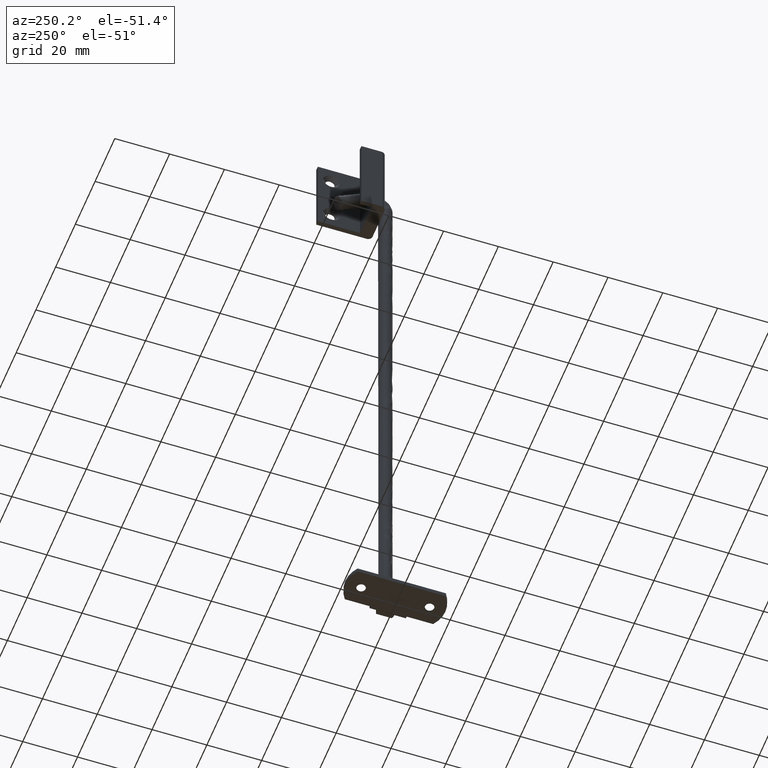
[diagram: clean part render]
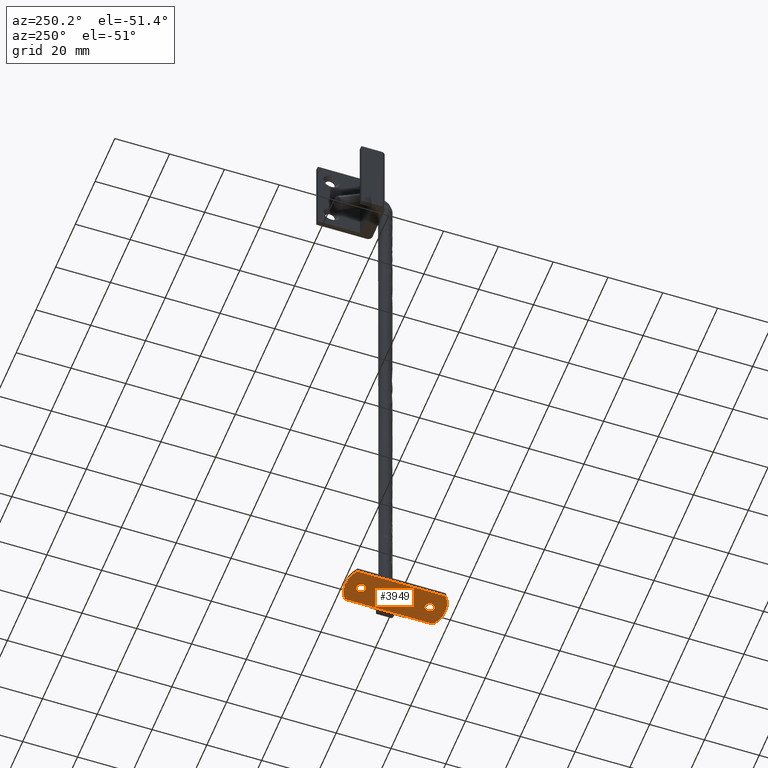
[diagram: same view with one face highlighted and labeled with its STEP entity id]
A machine part, auxiliary view. The second image highlights one B-rep face of the part: STEP entity #3949.
In plain terms, the highlighted face is a freeform B-spline surface patch.
Its self-contained STEP definition (entity closure, byte-faithful):
#2896=CARTESIAN_POINT('',(0.129457508885392,14.144913600586120,-2.602085E-018));
#2897=VERTEX_POINT('',#2896);
#2903=CARTESIAN_POINT('',(1.650000000000000,12.500000000000000,0.0));
#2904=VERTEX_POINT('',#2903);
#2905=CARTESIAN_POINT('',(1.650000000000000,12.500000000000000,0.0));
#2906=CARTESIAN_POINT('',(1.650000000000000,14.025244309497751,0.0));
#2907=CARTESIAN_POINT('',(0.129457508885392,14.144913600586115,-2.602085E-018));
#2915=(BOUNDED_CURVE()B_SPLINE_CURVE(2,(#2905,#2906,#2907),.UNSPECIFIED.,.F.,.U.)B_SPLINE_CURVE_WITH_KNOTS((3,3),(0.0,0.236331300438000),.UNSPECIFIED.)CURVE()GEOMETRIC_REPRESENTATION_ITEM()RATIONAL_B_SPLINE_CURVE((1.0,0.723120658833380,0.969723355765352))REPRESENTATION_ITEM(''));
#2916=EDGE_CURVE('',#2904,#2897,#2915,.T.);
#2918=CARTESIAN_POINT('',(-0.129457508885392,10.855086399413880,-2.602085E-018));
#2919=VERTEX_POINT('',#2918);
#2920=CARTESIAN_POINT('',(-0.129457508885392,10.855086399413885,-2.602085E-018));
#2921=CARTESIAN_POINT('',(-0.064828677501438,10.850000000000001,0.0));
#2922=CARTESIAN_POINT('',(0.0,10.850000000000000,0.0));
#2923=CARTESIAN_POINT('',(1.649999999999999,10.850000000000000,0.0));
#2924=CARTESIAN_POINT('',(1.650000000000000,12.500000000000000,0.0));
#2932=(BOUNDED_CURVE()B_SPLINE_CURVE(2,(#2920,#2921,#2922,#2923,#2924),.UNSPECIFIED.,.F.,.U.)B_SPLINE_CURVE_WITH_KNOTS((3,2,3),(0.736331300438000,0.750000000000000,1.0),.UNSPECIFIED.)CURVE()GEOMETRIC_REPRESENTATION_ITEM()RATIONAL_B_SPLINE_CURVE((0.969723355765352,0.983986122353168,1.0,0.707106781186548,1.0))REPRESENTATION_ITEM(''));
#2933=EDGE_CURVE('',#2919,#2904,#2932,.T.);
#2970=CARTESIAN_POINT('',(-1.650000000000000,12.500000000000000,0.0));
#2971=VERTEX_POINT('',#2970);
#2972=CARTESIAN_POINT('',(-1.650000000000000,12.500000000000000,0.0));
#2973=CARTESIAN_POINT('',(-1.650000000000000,10.974755690502251,0.0));
#2974=CARTESIAN_POINT('',(-0.129457508885392,10.855086399413882,-2.602085E-018));
#2982=(BOUNDED_CURVE()B_SPLINE_CURVE(2,(#2972,#2973,#2974),.UNSPECIFIED.,.F.,.U.)B_SPLINE_CURVE_WITH_KNOTS((3,3),(0.500000000000000,0.736331300438000),.UNSPECIFIED.)CURVE()GEOMETRIC_REPRESENTATION_ITEM()RATIONAL_B_SPLINE_CURVE((1.0,0.723120658833381,0.969723355765351))REPRESENTATION_ITEM(''));
#2983=EDGE_CURVE('',#2971,#2919,#2982,.T.);
#2985=CARTESIAN_POINT('',(0.129457508885392,14.144913600586124,-2.602085E-018));
#2986=CARTESIAN_POINT('',(0.064828677501438,14.150000000000000,0.0));
#2987=CARTESIAN_POINT('',(0.0,14.150000000000000,0.0));
#2988=CARTESIAN_POINT('',(-1.649999999999999,14.150000000000004,0.0));
#2989=CARTESIAN_POINT('',(-1.650000000000000,12.500000000000000,0.0));
#2997=(BOUNDED_CURVE()B_SPLINE_CURVE(2,(#2985,#2986,#2987,#2988,#2989),.UNSPECIFIED.,.F.,.U.)B_SPLINE_CURVE_WITH_KNOTS((3,2,3),(0.236331300438000,0.250000000000000,0.500000000000000),.UNSPECIFIED.)CURVE()GEOMETRIC_REPRESENTATION_ITEM()RATIONAL_B_SPLINE_CURVE((0.969723355765352,0.983986122353168,1.0,0.707106781186548,1.0))REPRESENTATION_ITEM(''));
#2998=EDGE_CURVE('',#2897,#2971,#2997,.T.);
#3224=CARTESIAN_POINT('',(0.129457508885392,-10.855086399413880,-2.602085E-018));
#3225=VERTEX_POINT('',#3224);
#3231=CARTESIAN_POINT('',(1.650000000000000,-12.500000000000000,0.0));
#3232=VERTEX_POINT('',#3231);
#3233=CARTESIAN_POINT('',(1.650000000000000,-12.500000000000000,0.0));
#3234=CARTESIAN_POINT('',(1.650000000000000,-10.974755690502246,0.0));
#3235=CARTESIAN_POINT('',(0.129457508885392,-10.855086399413887,-2.602085E-018));
#3243=(BOUNDED_CURVE()B_SPLINE_CURVE(2,(#3233,#3234,#3235),.UNSPECIFIED.,.F.,.U.)B_SPLINE_CURVE_WITH_KNOTS((3,3),(0.0,0.236331300438000),.UNSPECIFIED.)CURVE()GEOMETRIC_REPRESENTATION_ITEM()RATIONAL_B_SPLINE_CURVE((1.0,0.723120658833380,0.969723355765352))REPRESENTATION_ITEM(''));
#3244=EDGE_CURVE('',#3232,#3225,#3243,.T.);
#3246=CARTESIAN_POINT('',(-0.129457508885392,-14.144913600586120,-2.602085E-018));
#3247=VERTEX_POINT('',#3246);
#3248=CARTESIAN_POINT('',(-0.129457508885392,-14.144913600586124,-2.602085E-018));
#3249=CARTESIAN_POINT('',(-0.064828677501438,-14.150000000000000,0.0));
#3250=CARTESIAN_POINT('',(0.0,-14.150000000000000,0.0));
#3251=CARTESIAN_POINT('',(1.649999999999999,-14.150000000000004,0.0));
#3252=CARTESIAN_POINT('',(1.650000000000000,-12.500000000000000,0.0));
#3260=(BOUNDED_CURVE()B_SPLINE_CURVE(2,(#3248,#3249,#3250,#3251,#3252),.UNSPECIFIED.,.F.,.U.)B_SPLINE_CURVE_WITH_KNOTS((3,2,3),(0.736331300438000,0.750000000000000,1.0),.UNSPECIFIED.)CURVE()GEOMETRIC_REPRESENTATION_ITEM()RATIONAL_B_SPLINE_CURVE((0.969723355765352,0.983986122353168,1.0,0.707106781186548,1.0))REPRESENTATION_ITEM(''));
#3261=EDGE_CURVE('',#3247,#3232,#3260,.T.);
#3298=CARTESIAN_POINT('',(-1.650000000000000,-12.500000000000000,0.0));
#3299=VERTEX_POINT('',#3298);
#3300=CARTESIAN_POINT('',(-1.650000000000000,-12.500000000000000,0.0));
#3301=CARTESIAN_POINT('',(-1.650000000000000,-14.025244309497753,0.0));
#3302=CARTESIAN_POINT('',(-0.129457508885392,-14.144913600586124,-2.602085E-018));
#3310=(BOUNDED_CURVE()B_SPLINE_CURVE(2,(#3300,#3301,#3302),.UNSPECIFIED.,.F.,.U.)B_SPLINE_CURVE_WITH_KNOTS((3,3),(0.500000000000000,0.736331300438000),.UNSPECIFIED.)CURVE()GEOMETRIC_REPRESENTATION_ITEM()RATIONAL_B_SPLINE_CURVE((1.0,0.723120658833381,0.969723355765351))REPRESENTATION_ITEM(''));
#3311=EDGE_CURVE('',#3299,#3247,#3310,.T.);
#3313=CARTESIAN_POINT('',(0.129457508885392,-10.855086399413885,-2.602085E-018));
#3314=CARTESIAN_POINT('',(0.064828677501438,-10.850000000000001,0.0));
#3315=CARTESIAN_POINT('',(0.0,-10.850000000000000,0.0));
#3316=CARTESIAN_POINT('',(-1.649999999999999,-10.850000000000000,0.0));
#3317=CARTESIAN_POINT('',(-1.650000000000000,-12.500000000000000,0.0));
#3325=(BOUNDED_CURVE()B_SPLINE_CURVE(2,(#3313,#3314,#3315,#3316,#3317),.UNSPECIFIED.,.F.,.U.)B_SPLINE_CURVE_WITH_KNOTS((3,2,3),(0.236331300438000,0.250000000000000,0.500000000000000),.UNSPECIFIED.)CURVE()GEOMETRIC_REPRESENTATION_ITEM()RATIONAL_B_SPLINE_CURVE((0.969723355765352,0.983986122353168,1.0,0.707106781186548,1.0))REPRESENTATION_ITEM(''));
#3326=EDGE_CURVE('',#3225,#3299,#3325,.T.);
#3534=CARTESIAN_POINT('',(6.500000000000000,-6.499999999999890,0.0));
#3535=VERTEX_POINT('',#3534);
#3549=CARTESIAN_POINT('',(6.500000000000000,6.500000000000000,3.979971E-016));
#3550=VERTEX_POINT('',#3549);
#3551=CARTESIAN_POINT('',(6.500000000000000,-6.499999999999890,0.0));
#3552=CARTESIAN_POINT('',(6.500000000000000,6.500000000000000,3.979971E-016));
#3553=QUASI_UNIFORM_CURVE('',1,(#3551,#3552),.UNSPECIFIED.,.F.,.U.);
#3554=EDGE_CURVE('',#3535,#3550,#3553,.T.);
#3716=CARTESIAN_POINT('',(-6.500000058880930,-16.124119631521101,0.0));
#3717=VERTEX_POINT('',#3716);
#3718=CARTESIAN_POINT('',(6.499999999999890,-16.124119674649499,0.0));
#3719=VERTEX_POINT('',#3718);
#3720=CARTESIAN_POINT('',(-6.500000058880920,-16.124119631521090,0.0));
#3721=CARTESIAN_POINT('',(-0.000000045235587,-20.885155342753514,0.0));
#3722=CARTESIAN_POINT('',(6.499999999999889,-16.124119674649510,0.0));
#3730=(BOUNDED_CURVE()B_SPLINE_CURVE(2,(#3720,#3721,#3722),.UNSPECIFIED.,.F.,.U.)CURVE()GEOMETRIC_REPRESENTATION_ITEM()QUASI_UNIFORM_CURVE()RATIONAL_B_SPLINE_CURVE((1.0,0.806738150280482,1.0))REPRESENTATION_ITEM(''));
#3731=EDGE_CURVE('',#3717,#3719,#3730,.T.);
#3768=CARTESIAN_POINT('',(6.500000058880950,16.124119631521101,0.0));
#3769=VERTEX_POINT('',#3768);
#3770=CARTESIAN_POINT('',(6.500000058880950,16.124119631521101,0.0));
#3771=CARTESIAN_POINT('',(6.500000000000000,6.500000000000000,3.979971E-016));
#3772=QUASI_UNIFORM_CURVE('',1,(#3770,#3771),.UNSPECIFIED.,.F.,.U.);
#3773=EDGE_CURVE('',#3769,#3550,#3772,.T.);
#3805=CARTESIAN_POINT('',(-6.500000058880910,16.124119631521101,0.0));
#3806=VERTEX_POINT('',#3805);
#3807=CARTESIAN_POINT('',(6.500000058880937,16.124119631521079,0.0));
#3808=CARTESIAN_POINT('',(2.081668E-014,20.885155375887098,0.0));
#3809=CARTESIAN_POINT('',(-6.500000058880909,16.124119631521101,0.0));
#3817=(BOUNDED_CURVE()B_SPLINE_CURVE(2,(#3807,#3808,#3809),.UNSPECIFIED.,.F.,.U.)CURVE()GEOMETRIC_REPRESENTATION_ITEM()QUASI_UNIFORM_CURVE()RATIONAL_B_SPLINE_CURVE((1.0,0.806738148320099,1.0))REPRESENTATION_ITEM(''));
#3818=EDGE_CURVE('',#3769,#3806,#3817,.T.);
#3849=CARTESIAN_POINT('',(-6.500000058880930,-16.124119631521101,0.0));
#3850=CARTESIAN_POINT('',(-6.500000058880910,16.124119631521101,0.0));
#3851=QUASI_UNIFORM_CURVE('',1,(#3849,#3850),.UNSPECIFIED.,.F.,.U.);
#3852=EDGE_CURVE('',#3717,#3806,#3851,.T.);
#3875=CARTESIAN_POINT('',(6.500000000000000,-6.499999999999890,0.0));
#3876=CARTESIAN_POINT('',(6.499999999999890,-16.124119674649499,0.0));
#3877=QUASI_UNIFORM_CURVE('',1,(#3875,#3876),.UNSPECIFIED.,.F.,.U.);
#3878=EDGE_CURVE('',#3535,#3719,#3877,.T.);
#3924=CARTESIAN_POINT('',(7.149350039566633,20.073174929255352,0.0));
#3925=CARTESIAN_POINT('',(-7.149350388253788,20.073174929255352,0.0));
#3926=CARTESIAN_POINT('',(7.149350039566634,-20.073175908261650,0.0));
#3927=CARTESIAN_POINT('',(-7.149350388253788,-20.073175908261650,0.0));
#3928=B_SPLINE_SURFACE_WITH_KNOTS('',1,1,((#3924,#3926),(#3925,#3927)),.UNSPECIFIED.,.F.,.F.,.U.,(2,2),(2,2),(0.0,14.298700427820419),(0.0,40.146350837517012),.UNSPECIFIED.);
#3929=ORIENTED_EDGE('',*,*,#3878,.T.);
#3930=ORIENTED_EDGE('',*,*,#3731,.F.);
#3931=ORIENTED_EDGE('',*,*,#3852,.T.);
#3932=ORIENTED_EDGE('',*,*,#3818,.F.);
#3933=ORIENTED_EDGE('',*,*,#3773,.T.);
#3934=ORIENTED_EDGE('',*,*,#3554,.F.);
#3935=EDGE_LOOP('',(#3929,#3930,#3931,#3932,#3933,#3934));
#3936=FACE_OUTER_BOUND('',#3935,.T.);
#3937=ORIENTED_EDGE('',*,*,#3311,.T.);
#3938=ORIENTED_EDGE('',*,*,#3261,.T.);
#3939=ORIENTED_EDGE('',*,*,#3244,.T.);
#3940=ORIENTED_EDGE('',*,*,#3326,.T.);
#3941=EDGE_LOOP('',(#3937,#3938,#3939,#3940));
#3942=FACE_BOUND('',#3941,.T.);
#3943=ORIENTED_EDGE('',*,*,#2983,.T.);
#3944=ORIENTED_EDGE('',*,*,#2933,.T.);
#3945=ORIENTED_EDGE('',*,*,#2916,.T.);
#3946=ORIENTED_EDGE('',*,*,#2998,.T.);
#3947=EDGE_LOOP('',(#3943,#3944,#3945,#3946));
#3948=FACE_BOUND('',#3947,.T.);
#3949=ADVANCED_FACE('',(#3936,#3942,#3948),#3928,.F.);